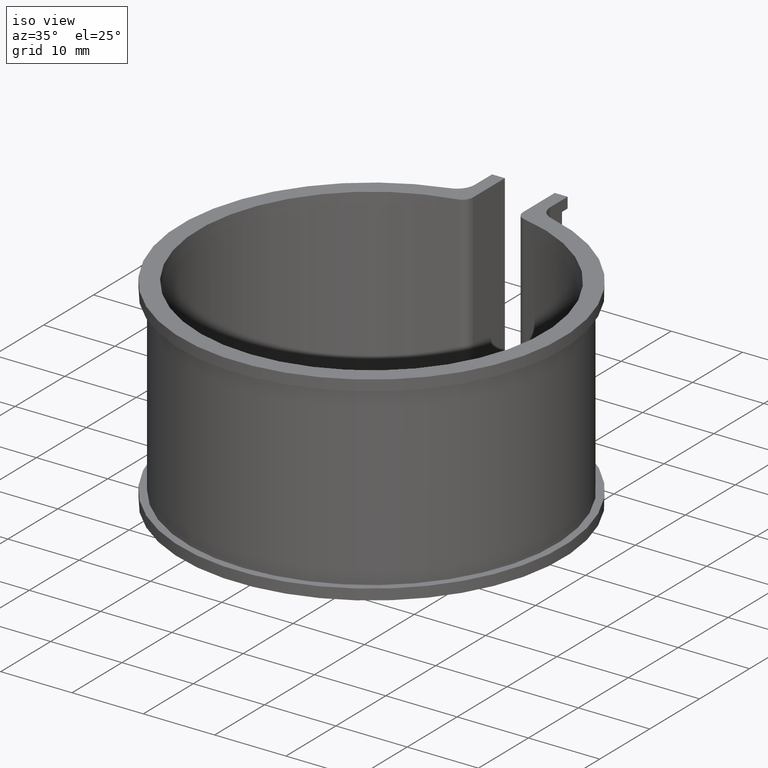
[diagram: clean part render]
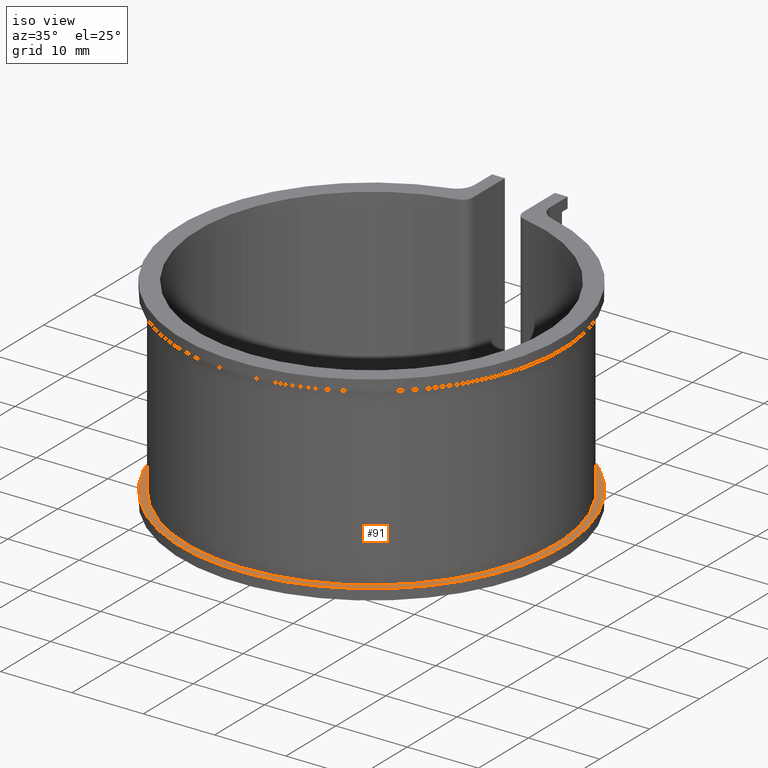
[diagram: same view with one face highlighted and labeled with its STEP entity id]
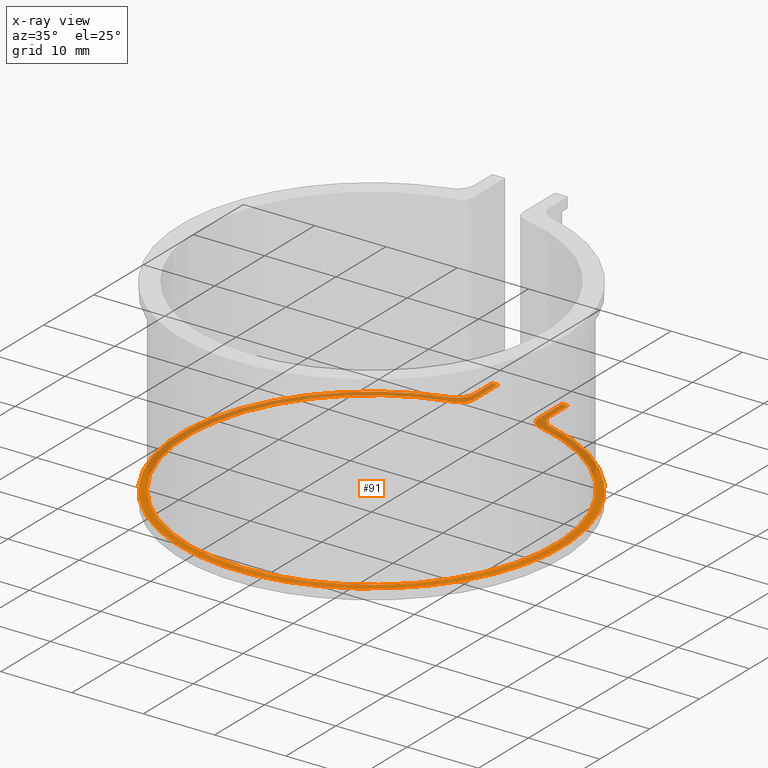
[diagram: x-ray of the same camera — body ghosted, the highlighted face saturated]
A machine part, iso view. The second image highlights one B-rep face of the part: STEP entity #91.
The next image is the same camera in x-ray: the body ghosted, the highlighted face saturated — about 43% of this face is hidden behind the body in this view.
In plain terms, the highlighted planar face has unit normal (0, 0, 1).
Its self-contained STEP definition (entity closure, byte-faithful):
#91 = ADVANCED_FACE( '', ( #134 ), #135, .T. );
#134 = FACE_OUTER_BOUND( '', #186, .T. );
#135 = PLANE( '', #187 );
#186 = EDGE_LOOP( '', ( #350, #351, #352, #353, #354, #355, #356, #357, #358, #359, #360, #361 ) );
#187 = AXIS2_PLACEMENT_3D( '', #362, #363, #364 );
#350 = ORIENTED_EDGE( '', *, *, #485, .F. );
#351 = ORIENTED_EDGE( '', *, *, #486, .T. );
#352 = ORIENTED_EDGE( '', *, *, #487, .F. );
#353 = ORIENTED_EDGE( '', *, *, #488, .T. );
#354 = ORIENTED_EDGE( '', *, *, #489, .F. );
#355 = ORIENTED_EDGE( '', *, *, #439, .T. );
#356 = ORIENTED_EDGE( '', *, *, #490, .T. );
#357 = ORIENTED_EDGE( '', *, *, #491, .T. );
#358 = ORIENTED_EDGE( '', *, *, #492, .T. );
#359 = ORIENTED_EDGE( '', *, *, #480, .T. );
#360 = ORIENTED_EDGE( '', *, *, #493, .T. );
#361 = ORIENTED_EDGE( '', *, *, #483, .T. );
#362 = CARTESIAN_POINT( '', ( 0.000000000000000, 0.000000000000000, -25.0000000000000 ) );
#363 = DIRECTION( '', ( 0.000000000000000, 0.000000000000000, 1.00000000000000 ) );
#364 = DIRECTION( '', ( 0.000000000000000, 1.00000000000000, 0.000000000000000 ) );
#439 = EDGE_CURVE( '', #508, #521, #523, .T. );
#480 = EDGE_CURVE( '', #591, #589, #592, .F. );
#483 = EDGE_CURVE( '', #596, #594, #597, .T. );
#485 = EDGE_CURVE( '', #599, #594, #600, .T. );
#486 = EDGE_CURVE( '', #599, #601, #602, .T. );
#487 = EDGE_CURVE( '', #603, #601, #604, .T. );
#488 = EDGE_CURVE( '', #603, #605, #606, .T. );
#489 = EDGE_CURVE( '', #508, #605, #607, .T. );
#490 = EDGE_CURVE( '', #521, #608, #609, .T. );
#491 = EDGE_CURVE( '', #608, #610, #611, .F. );
#492 = EDGE_CURVE( '', #610, #591, #612, .T. );
#493 = EDGE_CURVE( '', #589, #596, #613, .T. );
#508 = VERTEX_POINT( '', #632 );
#521 = VERTEX_POINT( '', #651 );
#523 = LINE( '', #654, #655 );
#589 = VERTEX_POINT( '', #742 );
#591 = VERTEX_POINT( '', #745 );
#592 = CIRCLE( '', #746, 2.50000000000000 );
#594 = VERTEX_POINT( '', #749 );
#596 = VERTEX_POINT( '', #752 );
#597 = LINE( '', #753, #754 );
#599 = VERTEX_POINT( '', #757 );
#600 = LINE( '', #758, #759 );
#601 = VERTEX_POINT( '', #760 );
#602 = CIRCLE( '', #761, 2.00000000000000 );
#603 = VERTEX_POINT( '', #762 );
#604 = CIRCLE( '', #763, 25.8000000000000 );
#605 = VERTEX_POINT( '', #764 );
#606 = CIRCLE( '', #765, 2.00000000000000 );
#607 = LINE( '', #766, #767 );
#608 = VERTEX_POINT( '', #768 );
#609 = LINE( '', #769, #770 );
#610 = VERTEX_POINT( '', #771 );
#611 = CIRCLE( '', #772, 2.50000000000000 );
#612 = CIRCLE( '', #773, 26.8000000000000 );
#613 = LINE( '', #774, #775 );
#632 = CARTESIAN_POINT( '', ( -4.50000000000001, 31.7045271556075, -25.0000000000000 ) );
#651 = CARTESIAN_POINT( '', ( -5.30000000000000, 31.7045271556075, -25.0000000000000 ) );
#654 = CARTESIAN_POINT( '', ( -3.50000000000000, 31.7045271556075, -25.0000000000000 ) );
#655 = VECTOR( '', #799, 1000.00000000000 );
#742 = CARTESIAN_POINT( '', ( 5.30000000000000, 28.2426981713858, -25.0000000000000 ) );
#745 = CARTESIAN_POINT( '', ( 7.13447098976109, 25.8329116379911, -25.0000000000000 ) );
#746 = AXIS2_PLACEMENT_3D( '', #876, #877, #878 );
#749 = CARTESIAN_POINT( '', ( 4.50000000000001, 31.7045271556075, -25.0000000000000 ) );
#752 = CARTESIAN_POINT( '', ( 5.30000000000000, 31.7045271556076, -25.0000000000000 ) );
#753 = CARTESIAN_POINT( '', ( 5.30000000000003, 31.7045271556075, -25.0000000000000 ) );
#754 = VECTOR( '', #881, 1000.00000000000 );
#757 = CARTESIAN_POINT( '', ( 4.50000000000000, 27.0294284068310, -25.0000000000000 ) );
#758 = CARTESIAN_POINT( '', ( 4.50000000000000, 25.4045271556075, -25.0000000000000 ) );
#759 = VECTOR( '', #883, 1000.00000000000 );
#760 = CARTESIAN_POINT( '', ( 6.03237410071943, 25.0848652120949, -25.0000000000000 ) );
#761 = AXIS2_PLACEMENT_3D( '', #884, #885, #886 );
#762 = CARTESIAN_POINT( '', ( -6.03237410071942, 25.0848652120949, -25.0000000000000 ) );
#763 = AXIS2_PLACEMENT_3D( '', #887, #888, #889 );
#764 = CARTESIAN_POINT( '', ( -4.50000000000000, 27.0294284068310, -25.0000000000000 ) );
#765 = AXIS2_PLACEMENT_3D( '', #890, #891, #892 );
#766 = CARTESIAN_POINT( '', ( -4.50000000000000, 31.7045271556076, -25.0000000000000 ) );
#767 = VECTOR( '', #893, 1000.00000000000 );
#768 = CARTESIAN_POINT( '', ( -5.30000000000000, 28.2426981713858, -25.0000000000000 ) );
#769 = CARTESIAN_POINT( '', ( -5.30000000000000, 31.7045271556075, -25.0000000000000 ) );
#770 = VECTOR( '', #894, 1000.00000000000 );
#771 = CARTESIAN_POINT( '', ( -7.13447098976109, 25.8329116379911, -25.0000000000000 ) );
#772 = AXIS2_PLACEMENT_3D( '', #895, #896, #897 );
#773 = AXIS2_PLACEMENT_3D( '', #898, #899, #900 );
#774 = CARTESIAN_POINT( '', ( 5.30000000000000, 26.2707061191739, -25.0000000000000 ) );
#775 = VECTOR( '', #901, 1000.00000000000 );
#799 = DIRECTION( '', ( -1.00000000000000, 0.000000000000000, 0.000000000000000 ) );
#876 = CARTESIAN_POINT( '', ( 7.80000000000000, 28.2426981713858, -25.0000000000000 ) );
#877 = DIRECTION( '', ( 0.000000000000000, 0.000000000000000, 1.00000000000000 ) );
#878 = DIRECTION( '', ( 1.00000000000000, 0.000000000000000, 0.000000000000000 ) );
#881 = DIRECTION( '', ( -1.00000000000000, 0.000000000000000, 0.000000000000000 ) );
#883 = DIRECTION( '', ( -2.77555756156289E-017, 1.00000000000000, 0.000000000000000 ) );
#884 = CARTESIAN_POINT( '', ( 6.50000000000001, 27.0294284068310, -25.0000000000000 ) );
#885 = DIRECTION( '', ( 0.000000000000000, 0.000000000000000, 1.00000000000000 ) );
#886 = DIRECTION( '', ( 1.00000000000000, 0.000000000000000, 0.000000000000000 ) );
#887 = CARTESIAN_POINT( '', ( 2.60208521396521E-015, 1.38777878078145E-014, -25.0000000000000 ) );
#888 = DIRECTION( '', ( 0.000000000000000, 0.000000000000000, 1.00000000000000 ) );
#889 = DIRECTION( '', ( 1.00000000000000, -8.32667268468867E-017, 0.000000000000000 ) );
#890 = CARTESIAN_POINT( '', ( -6.50000000000000, 27.0294284068310, -25.0000000000000 ) );
#891 = DIRECTION( '', ( 0.000000000000000, 0.000000000000000, 1.00000000000000 ) );
#892 = DIRECTION( '', ( 1.00000000000000, 0.000000000000000, 0.000000000000000 ) );
#893 = DIRECTION( '', ( 2.77555756156289E-017, -1.00000000000000, 0.000000000000000 ) );
#894 = DIRECTION( '', ( -6.12303176911189E-017, -1.00000000000000, 0.000000000000000 ) );
#895 = CARTESIAN_POINT( '', ( -7.80000000000000, 28.2426981713858, -25.0000000000000 ) );
#896 = DIRECTION( '', ( 0.000000000000000, 0.000000000000000, 1.00000000000000 ) );
#897 = DIRECTION( '', ( 1.00000000000000, 0.000000000000000, 0.000000000000000 ) );
#898 = CARTESIAN_POINT( '', ( 0.000000000000000, 0.000000000000000, -25.0000000000000 ) );
#899 = DIRECTION( '', ( 0.000000000000000, 0.000000000000000, 1.00000000000000 ) );
#900 = DIRECTION( '', ( 1.00000000000000, 0.000000000000000, 0.000000000000000 ) );
#901 = DIRECTION( '', ( 6.12303176911189E-017, 1.00000000000000, 0.000000000000000 ) );